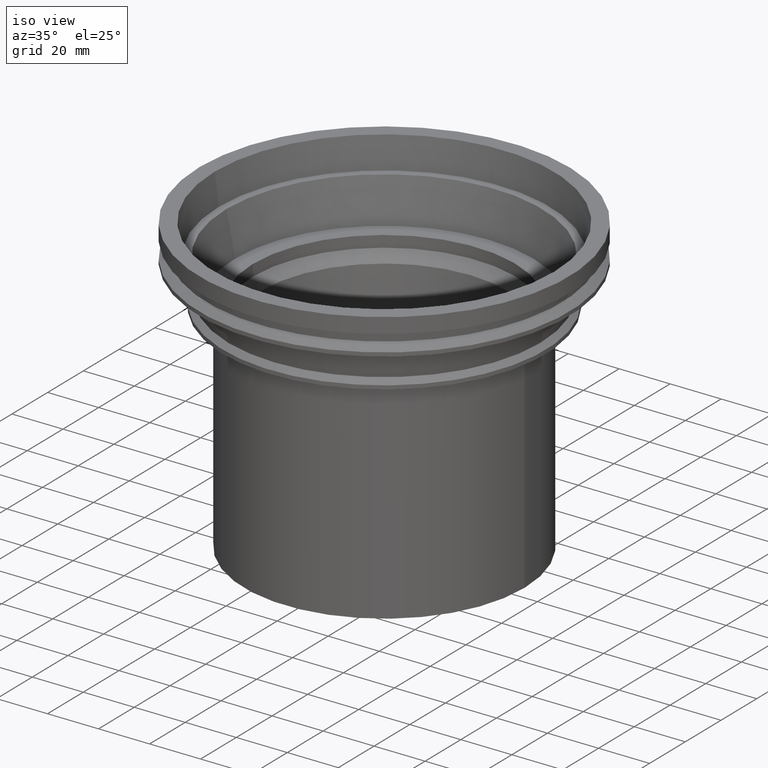
[diagram: clean part render]
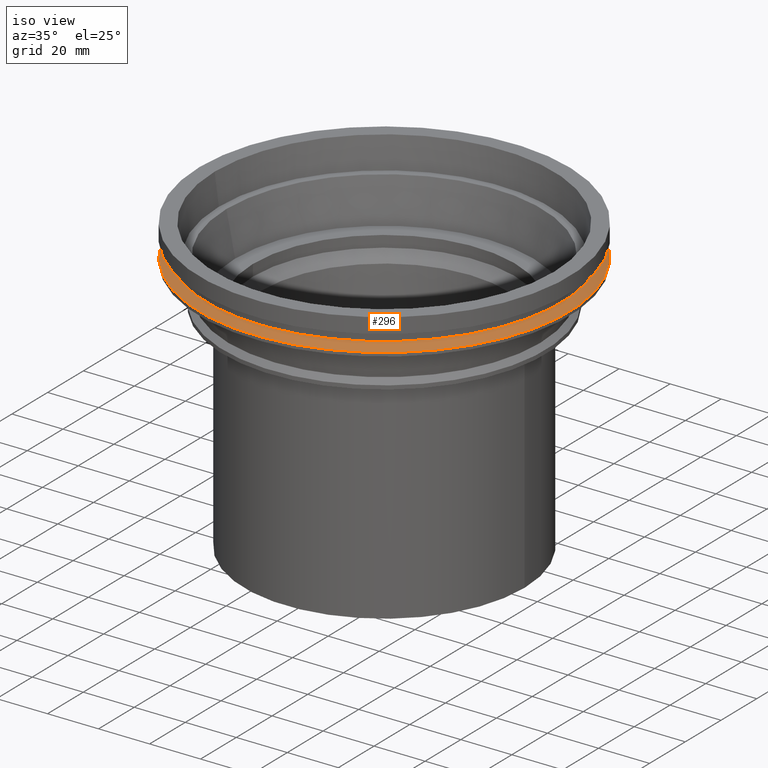
[diagram: same view with one face highlighted and labeled with its STEP entity id]
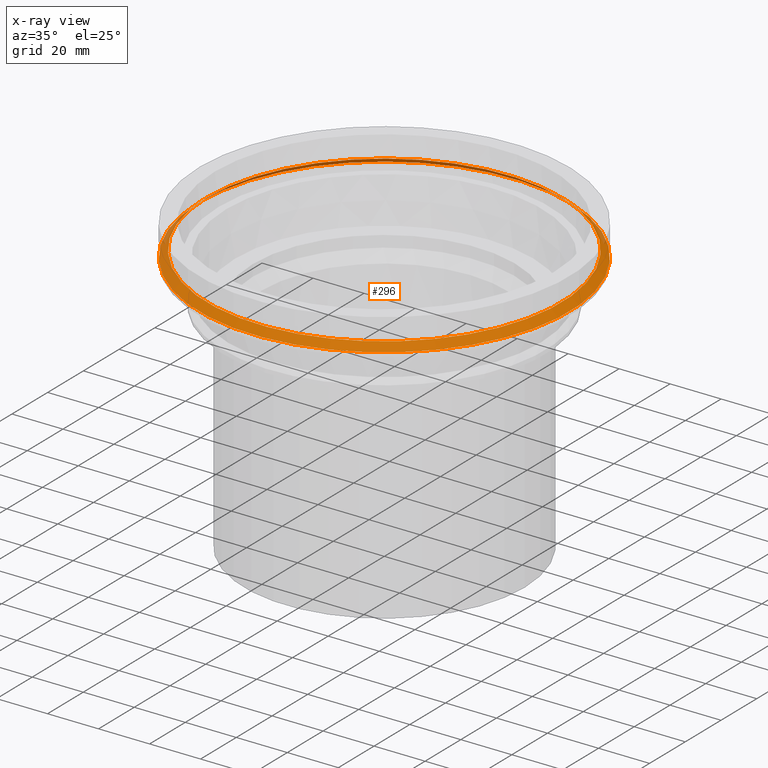
[diagram: x-ray of the same camera — body ghosted, the highlighted face saturated]
A machine part, iso view. The second image highlights one B-rep face of the part: STEP entity #296.
The next image is the same camera in x-ray: the body ghosted, the highlighted face saturated — about 2% of this face is hidden behind the body in this view.
In plain terms, the highlighted conical surface has half-angle 50.194 deg.
Its self-contained STEP definition (entity closure, byte-faithful):
#19=CONICAL_SURFACE('',#356,72.5,0.876058050598193);
#60=ORIENTED_EDGE('',*,*,#107,.T.);
#61=ORIENTED_EDGE('',*,*,#106,.F.);
#106=EDGE_CURVE('',#132,#132,#158,.T.);
#107=EDGE_CURVE('',#133,#133,#159,.T.);
#132=VERTEX_POINT('',#527);
#133=VERTEX_POINT('',#530);
#158=CIRCLE('',#355,72.5);
#159=CIRCLE('',#357,69.5);
#190=EDGE_LOOP('',(#60));
#191=EDGE_LOOP('',(#61));
#242=FACE_BOUND('',#190,.T.);
#243=FACE_BOUND('',#191,.T.);
#296=ADVANCED_FACE('',(#242,#243),#19,.T.);
#355=AXIS2_PLACEMENT_3D('',#526,#424,#425);
#356=AXIS2_PLACEMENT_3D('',#528,#426,#427);
#357=AXIS2_PLACEMENT_3D('',#529,#428,#429);
#424=DIRECTION('',(0.,0.,-1.));
#425=DIRECTION('',(-1.,0.,0.));
#426=DIRECTION('',(0.,0.,-1.));
#427=DIRECTION('',(-1.,0.,0.));
#428=DIRECTION('',(0.,0.,-1.));
#429=DIRECTION('',(-1.,0.,0.));
#526=CARTESIAN_POINT('',(0.,0.,-12.5));
#527=CARTESIAN_POINT('',(-72.5,0.,-12.5));
#528=CARTESIAN_POINT('',(0.,0.,-12.5));
#529=CARTESIAN_POINT('',(0.,0.,-10.));
#530=CARTESIAN_POINT('',(-69.5,0.,-10.));